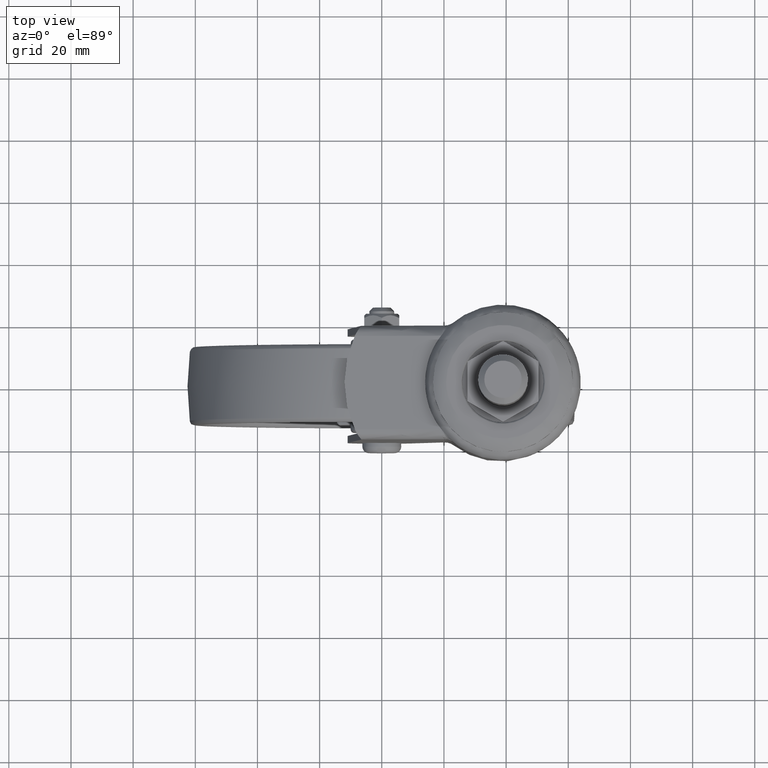
[diagram: clean part render]
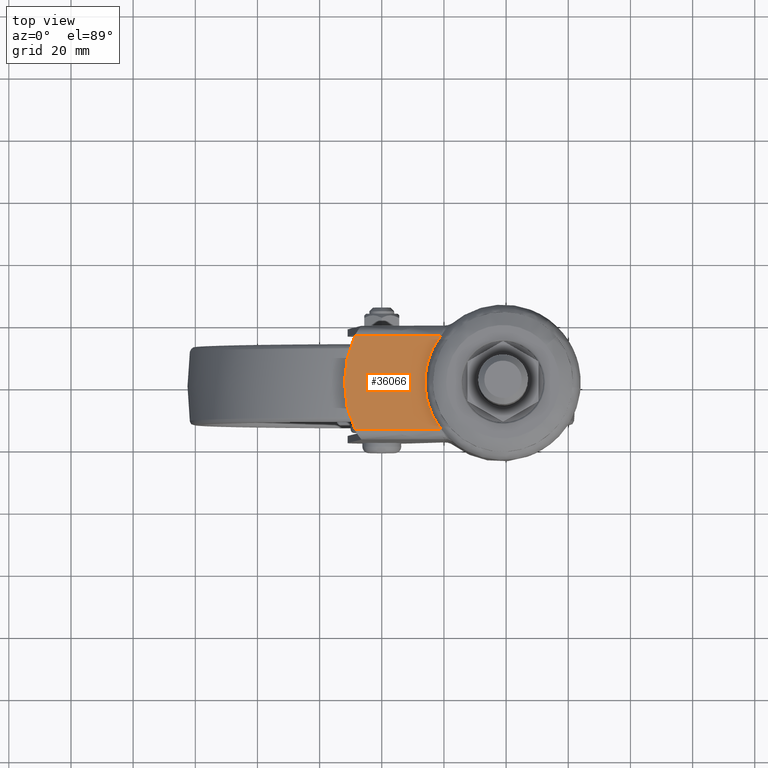
[diagram: same view with one face highlighted and labeled with its STEP entity id]
A machine part, top view. The second image highlights one B-rep face of the part: STEP entity #36066.
In plain terms, the highlighted face is a freeform B-spline surface patch.
Its self-contained STEP definition (entity closure, byte-faithful):
#34208=CARTESIAN_POINT('',(19.034430391100599,14.999990000000000,73.572204257533613));
#34209=VERTEX_POINT('',#34208);
#34379=CARTESIAN_POINT('',(19.034438270530799,-15.0,73.572205646889699));
#34380=VERTEX_POINT('',#34379);
#34396=CARTESIAN_POINT('',(19.034438270530799,-15.0,73.572205646889699));
#34397=CARTESIAN_POINT('',(16.541887088934779,-11.836359299278620,73.132701634932189));
#34398=CARTESIAN_POINT('',(15.221963911905430,-7.937668755745642,72.899963572795954));
#34399=CARTESIAN_POINT('',(13.919092742890809,-4.089345160494640,72.670232239664813));
#34400=CARTESIAN_POINT('',(13.920163713295430,0.007485223726400,72.670421080637468));
#34401=CARTESIAN_POINT('',(13.921233571013939,4.100059200426331,72.670609725413541));
#34402=CARTESIAN_POINT('',(15.225297724388961,7.947510309361250,72.900551413869167));
#34403=CARTESIAN_POINT('',(16.544525923524670,11.839700723895289,73.133166932655143));
#34404=CARTESIAN_POINT('',(19.034430391100599,14.999990000000000,73.572204257533613));
#34405=B_SPLINE_CURVE_WITH_KNOTS('',2,(#34396,#34397,#34398,#34399,#34400,#34401,#34402,#34403,#34404),.UNSPECIFIED.,.F.,.U.,(3,2,2,2,3),(0.0,0.250000000000000,0.500000000000000,0.750000000000000,1.0),.UNSPECIFIED.);
#34406=EDGE_CURVE('',#34380,#34209,#34405,.T.);
#35203=CARTESIAN_POINT('',(-8.684266168760072,14.999990000000000,68.684650319126703));
#35204=VERTEX_POINT('',#35203);
#35234=CARTESIAN_POINT('',(19.034430391100599,14.999990000000000,73.572204257533613));
#35235=CARTESIAN_POINT('',(-8.684266168760072,14.999990000000000,68.684650319126703));
#35236=QUASI_UNIFORM_CURVE('',1,(#35234,#35235),.UNSPECIFIED.,.F.,.U.);
#35237=EDGE_CURVE('',#34209,#35204,#35236,.T.);
#35258=CARTESIAN_POINT('',(-8.684261513221999,-15.0,68.684651140023703));
#35259=VERTEX_POINT('',#35258);
#35260=CARTESIAN_POINT('',(-8.684261513221999,-15.0,68.684651140023703));
#35261=CARTESIAN_POINT('',(19.034438270530799,-15.0,73.572205646889699));
#35262=QUASI_UNIFORM_CURVE('',1,(#35260,#35261),.UNSPECIFIED.,.F.,.U.);
#35263=EDGE_CURVE('',#35259,#34380,#35262,.T.);
#35999=CARTESIAN_POINT('',(-8.684261513222030,-15.000000000000041,68.684651140023632));
#36000=CARTESIAN_POINT('',(-15.667568512706627,-0.000006117395330,67.453305735497622));
#36001=CARTESIAN_POINT('',(-8.684266168760054,14.999989999999981,68.684650319126689));
#36009=(BOUNDED_CURVE()B_SPLINE_CURVE(2,(#35999,#36000,#36001),.UNSPECIFIED.,.F.,.U.)CURVE()GEOMETRIC_REPRESENTATION_ITEM()QUASI_UNIFORM_CURVE()RATIONAL_B_SPLINE_CURVE((1.0,0.904069316638658,1.0))REPRESENTATION_ITEM(''));
#36010=EDGE_CURVE('',#35259,#35204,#36009,.T.);
#36055=CARTESIAN_POINT('',(20.584609275980348,-16.498499442354198,73.845542612303149));
#36056=CARTESIAN_POINT('',(-13.550171005449229,-16.498499442354198,67.826660034586652));
#36057=CARTESIAN_POINT('',(20.584609275980348,16.498490247016630,73.845542612303149));
#36058=CARTESIAN_POINT('',(-13.550171005449229,16.498490247016630,67.826660034586652));
#36059=B_SPLINE_SURFACE_WITH_KNOTS('',1,1,((#36055,#36057),(#36056,#36058)),.UNSPECIFIED.,.F.,.F.,.U.,(2,2),(2,2),(0.0,34.661364259731798),(0.0,32.996989689370842),.UNSPECIFIED.);
#36060=ORIENTED_EDGE('',*,*,#35263,.T.);
#36061=ORIENTED_EDGE('',*,*,#34406,.T.);
#36062=ORIENTED_EDGE('',*,*,#35237,.T.);
#36063=ORIENTED_EDGE('',*,*,#36010,.F.);
#36064=EDGE_LOOP('',(#36060,#36061,#36062,#36063));
#36065=FACE_OUTER_BOUND('',#36064,.T.);
#36066=ADVANCED_FACE('',(#36065),#36059,.F.);